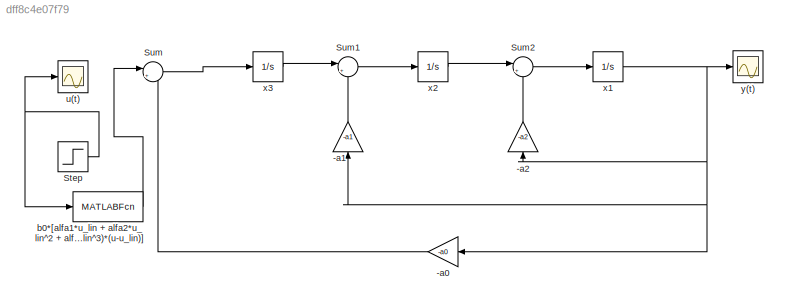
MODEL slx_dff8c4e07f79
KIND model
CONFIG AbsTol = auto
CONFIG EnableMultiTasking = off
CONFIG FixedStep = auto
CONFIG MaxStep = auto
CONFIG MinStep = auto
CONFIG RelTol = 1e-3
CONFIG SampleTimeConstraint = Unconstrained
CONFIG SolverName = VariableStepAuto
CONFIG StartTime = 0.0
CONFIG StopTime = 100.0
BLOCK [Gain] -a0
  Gain = -a0
BLOCK [Gain] -a1
  Gain = -a1
  NameLocation = right
BLOCK [Gain] -a2
  Gain = -a2
  NameLocation = right
BLOCK [Step] Step
  After = 0.5
  SampleTime = 0
  Time = 10
BLOCK [Sum] Sum
  Inputs = |++
BLOCK [Sum] Sum1
  Inputs = |++
BLOCK [Sum] Sum2
  Inputs = |++
BLOCK [MATLABFcn] b0*[alfa1*u_lin + alfa2*u_lin^2 + alfa3*u_lin^3 + alfa4*u_lin^4 + (alfa1 + 2*alfa2*u_lin + 3*alfa3*u_lin^2 + 4*alfa4*u_lin^3)*(u-u_lin)]
  MATLABFcn = b0*[alfa1*u_lin + alfa2*u_lin^2 + alfa3*u_lin^3 + alfa4*u_lin^4 + (alfa1 + 2*alfa2*u_lin + 3*alfa3*u_lin^2 + 4*alfa4*u_lin^3)*(u-u_lin)]
BLOCK [Scope] u(t)
  Floating = off
  NumInputPorts = 1
  ScopeSpecificationString = Simulink.scopes.TimeScopeBlockCfg('CurrentConfiguration', extmgr.ConfigurationSet(extmgr.Configuration('Core','General UI',true),extmgr.Configuration('Core','Source UI',true),extmgr.Configuration('Sources','WiredSimulink',true,'DataLoggingVariableName','ScopeData1'),extmgr.Configuration('Visuals','Time Domain',true,'SerializedDisplays',{struct('MinYLimReal','-0.0625','MaxYLimReal','0.5625','YLabel...<+1357ch>
BLOCK [Integrator] x1
BLOCK [Integrator] x2
BLOCK [Integrator] x3
BLOCK [Scope] y(t)
  Floating = off
  NumInputPorts = 1
  ScopeSpecificationString = Simulink.scopes.TimeScopeBlockCfg('CurrentConfiguration', extmgr.ConfigurationSet(extmgr.Configuration('Core','General UI',true),extmgr.Configuration('Core','Source UI',true),extmgr.Configuration('Sources','WiredSimulink',true),extmgr.Configuration('Visuals','Time Domain',true,'SerializedDisplays',{struct('MinYLimReal','-0.03529','MaxYLimReal','0.31765','YLabelReal','','MinYLimMag','0.00000','MaxY...<+1322ch>
LINE -a0:1 -> Sum:2
LINE -a1:1 -> Sum1:2
LINE -a2:1 -> Sum2:2
NET Step:1 -> b0*[alfa1*u_lin + alfa2*u_lin^2 + alfa3*u_lin^3 + alfa4*u_lin^4 + (alfa1 + 2*alfa2*u_lin + 3*alfa3*u_lin^2 + 4*alfa4*u_lin^3)*(u-u_lin)]:1, u(t):1
LINE Sum1:1 -> x2:1
LINE Sum2:1 -> x1:1
LINE Sum:1 -> x3:1
LINE b0*[alfa1*u_lin + alfa2*u_lin^2 + alfa3*u_lin^3 + alfa4*u_lin^4 + (alfa1 + 2*alfa2*u_lin + 3*alfa3*u_lin^2 + 4*alfa4*u_lin^3)*(u-u_lin)]:1 -> Sum:1
NET x1:1 -> -a0:1, -a1:1, -a2:1, y(t):1
LINE x2:1 -> Sum2:1
LINE x3:1 -> Sum1:1
note: NET lines group one-source signal fan-out (src -> all destinations, sorted); 1:1 wires keep LINE
